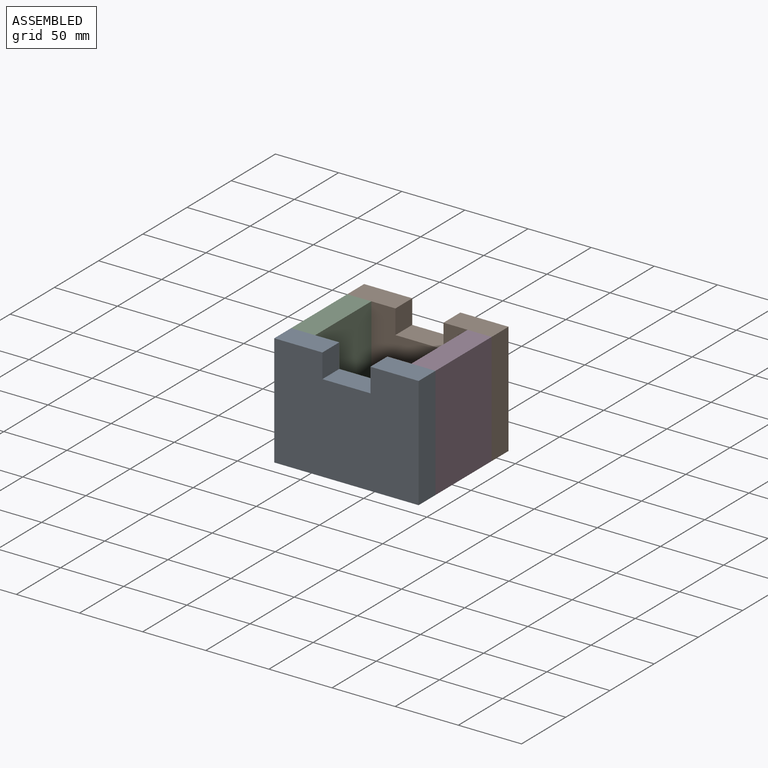
[diagram: assembled view]
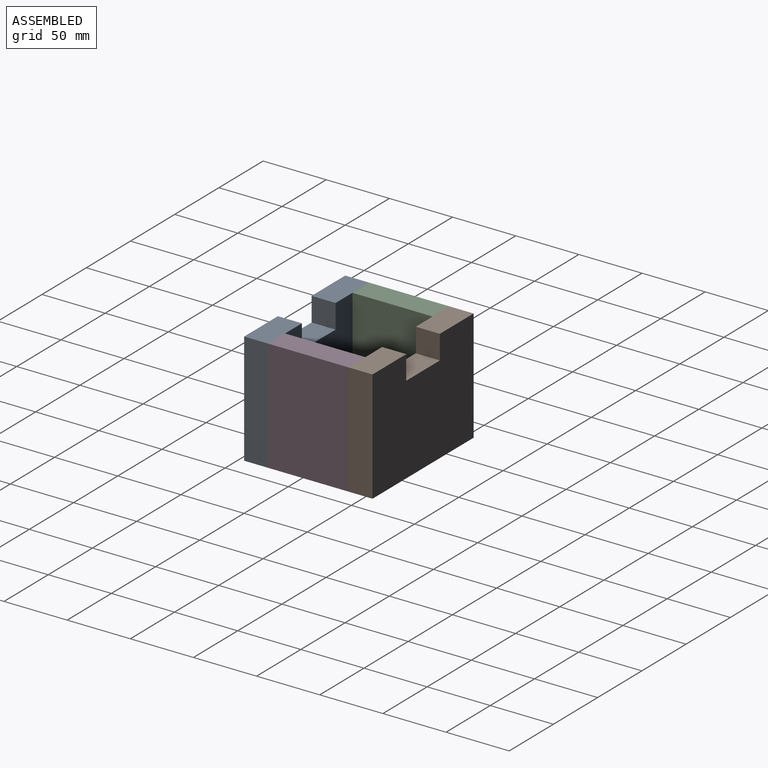
[diagram: assembled view, second angle]
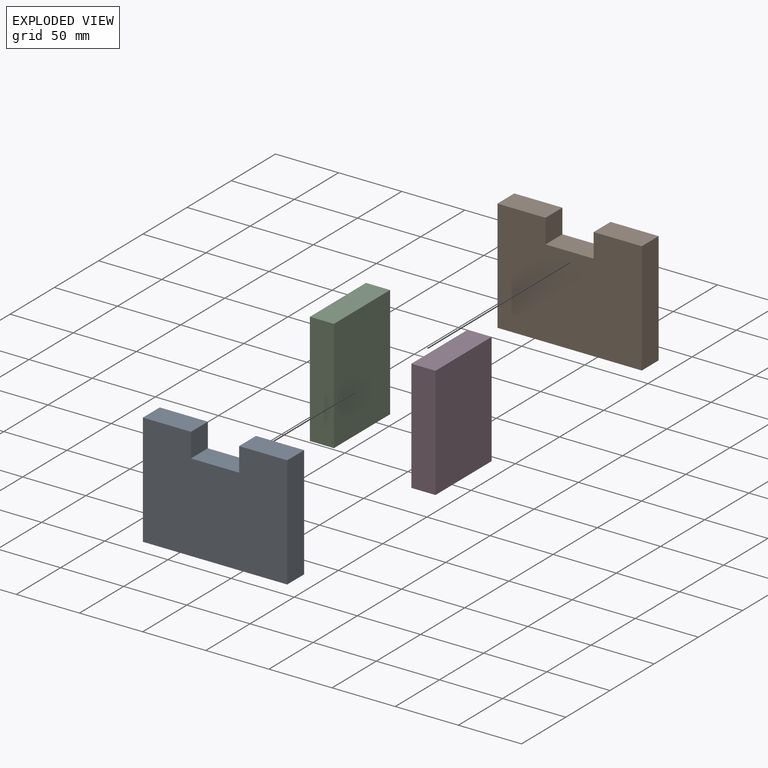
[diagram: exploded view]
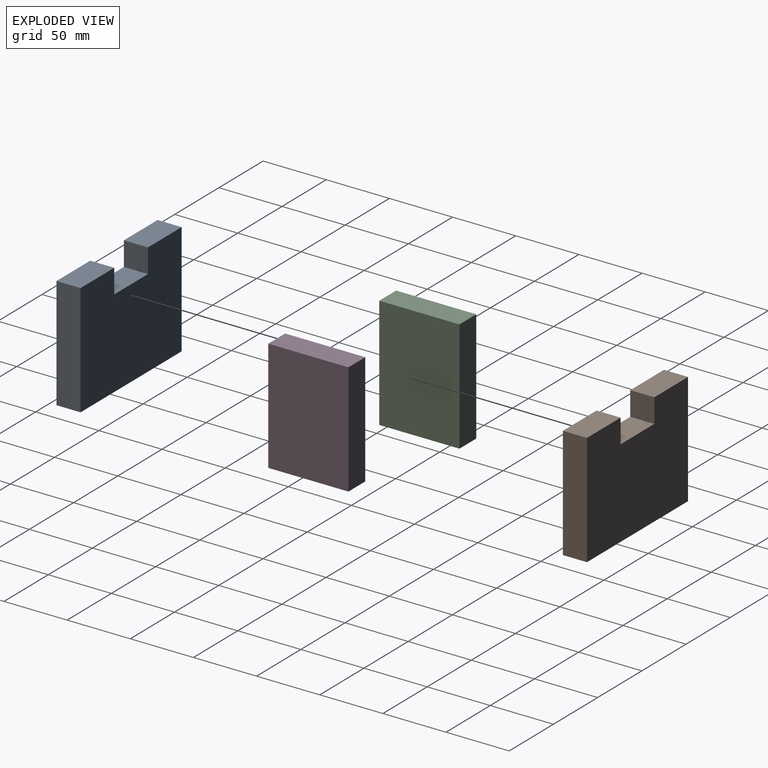
[diagram: exploded view, second angle]
ASSEMBLY  parts=4 mates=9
PART A: 10 faces, bbox 114.3x19.1x88.9 mm
  f0: plane 88.9x19.05mm, normal (1,0,0), area 1693.5mm2, adj f1,f7,f8,f9
  f1: plane 38.1x19.05mm, normal (0,0,1), area 725.8mm2, adj f0,f2,f8,f9
  f2: plane 19.05x19.05mm, normal (-1,0,0), area 362.9mm2, adj f1,f3,f8,f9
  f3: plane 38.1x19.05mm, normal (0,0,1), area 725.8mm2, adj f2,f4,f8,f9
  f4: plane 19.05x19.05mm, normal (1,0,0), area 362.9mm2, adj f3,f5,f8,f9
  f5: plane 38.1x19.05mm, normal (0,0,1), area 725.8mm2, adj f4,f6,f8,f9
  f6: plane 88.9x19.05mm, normal (-1,0,0), area 1693.5mm2, adj f5,f7,f8,f9
  f7: plane 114.3x19.05mm, normal (0,0,-1), area 2177.4mm2, adj f0,f6,f8,f9
  f8: plane 114.3x88.9mm, normal (0,-1,0), area 9435.5mm2, adj f0,f1,f2,f3,f4,f5,f6,f7
  f9: plane 114.3x88.9mm, normal (0,1,0), area 9435.5mm2, adj f0,f1,f2,f3,f4,f5,f6,f7
PART B: same geometry as A
PART C: 6 faces, bbox 63.5x19.1x88.9 mm
  f0: plane 63.5x19.05mm, normal (0,0,1), area 1209.7mm2, adj f1,f3,f4,f5
  f1: plane 88.9x19.05mm, normal (-1,0,0), area 1693.5mm2, adj f0,f2,f4,f5
  f2: plane 63.5x19.05mm, normal (0,0,-1), area 1209.7mm2, adj f1,f3,f4,f5
  f3: plane 88.9x19.05mm, normal (1,0,0), area 1693.5mm2, adj f0,f2,f4,f5
  f4: plane 88.9x63.5mm, normal (0,1,0), area 5645.2mm2, adj f0,f1,f2,f3
  f5: plane 88.9x63.5mm, normal (0,-1,0), area 5645.2mm2, adj f0,f1,f2,f3
PART D: same geometry as C
PLACE A t=(138.93,-223.85,-151.51)mm
PLACE B t=(138.93,-141.3,-151.51)mm
PLACE C rot(axis=(0,0,-1),90deg) t=(74.22,-186.21,-151.74)mm
PLACE D rot(axis=(0.71,-0.71,0),180deg) t=(188.52,-186.21,-138.86)mm
MATE planar D.f3 <-> A.f9  axis (0,-1,0) through (179,-223.85,-145.3)mm
MATE planar B.f8 <-> D.f1  axis (0,-1,0) through (131.37,-160.35,-147.98)mm
MATE planar D.f2 <-> A.f1  axis (0,0,1) through (179,-192.1,-100.85)mm
MATE planar C.f5 <-> A.f6  axis (-1,0,0) through (74.22,-192.1,-145.3)mm
MATE planar C.f3 <-> A.f9  axis (0,-1,0) through (74.22,-223.85,-145.3)mm
MATE planar B.f0 <-> D.f5  axis (1,0,0) through (188.52,-150.82,-145.3)mm
MATE planar D.f5 <-> A.f0  axis (1,0,0) through (188.52,-192.1,-145.3)mm
MATE planar D.f2 <-> B.f1  axis (0,0,1) through (179,-192.1,-100.85)mm
MATE planar C.f0 <-> A.f5  axis (0,0,1) through (83.75,-192.1,-100.85)mm
